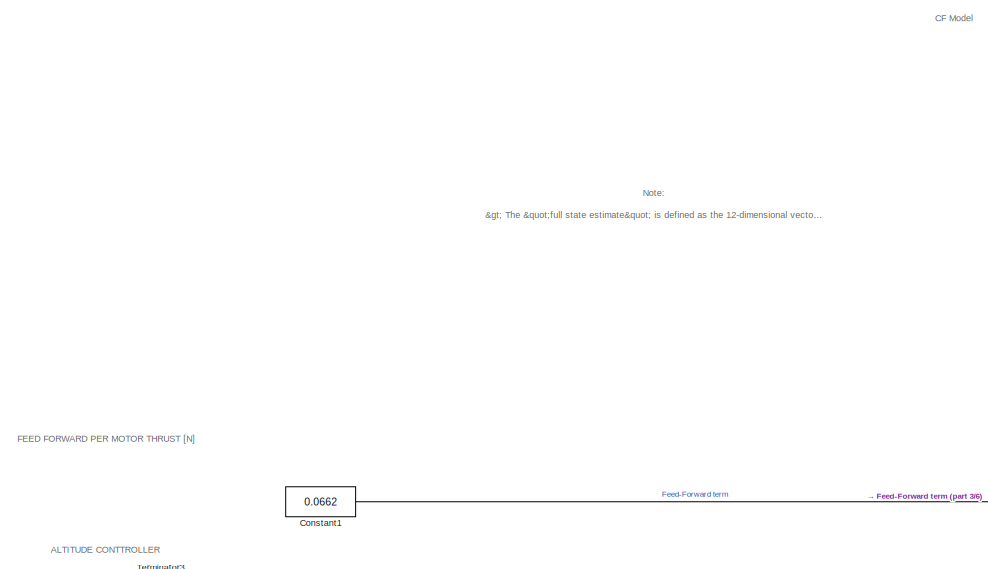
[diagram: root canvas - part 1/6, top center region]
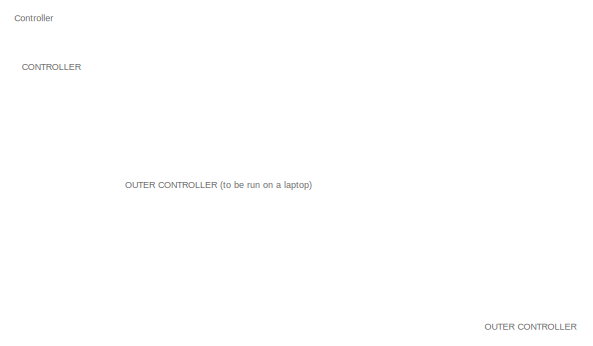
[diagram: root canvas - part 2/6, top left region]
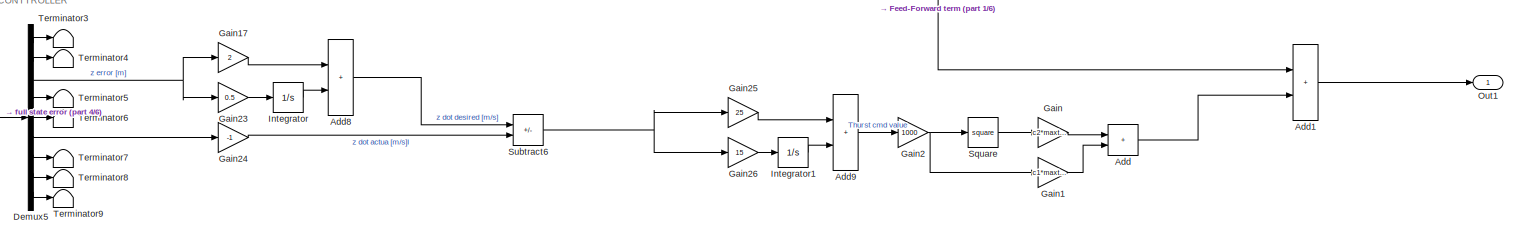
[diagram: root canvas - part 3/6, central region]
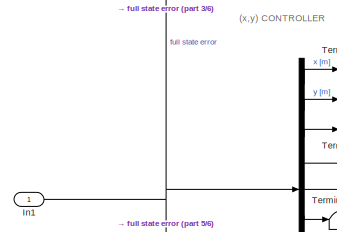
[diagram: root canvas - part 4/6, middle left region]
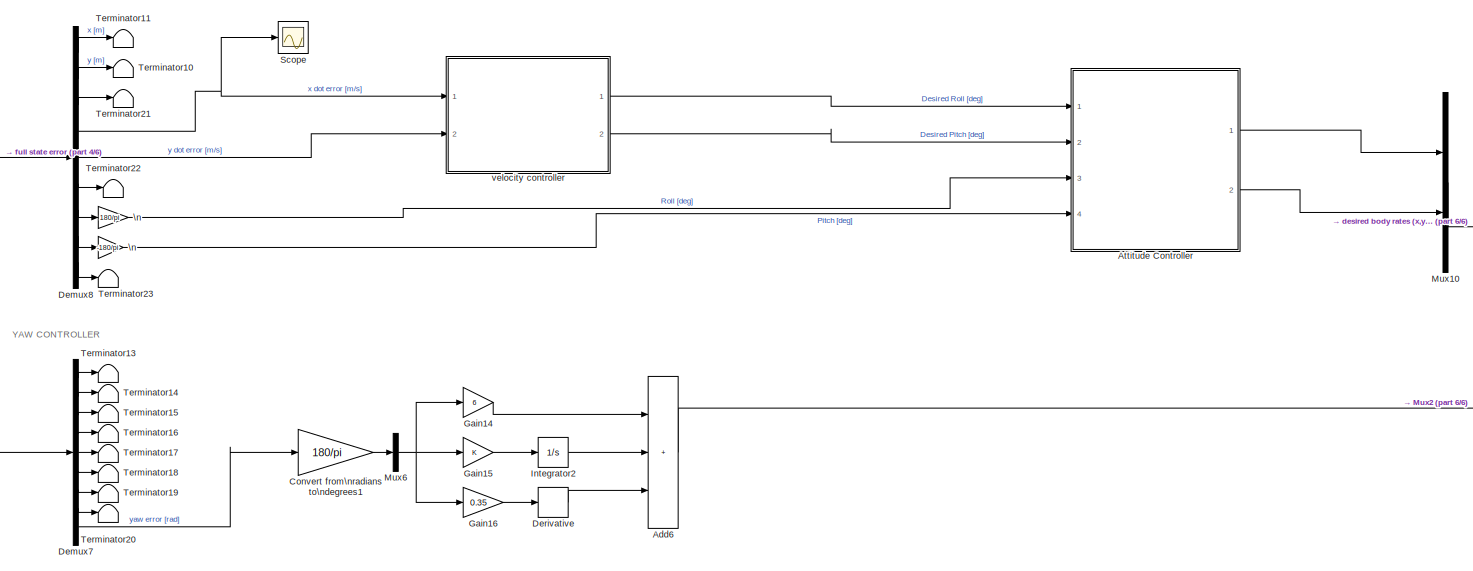
[diagram: root canvas - part 5/6, bottom center region]
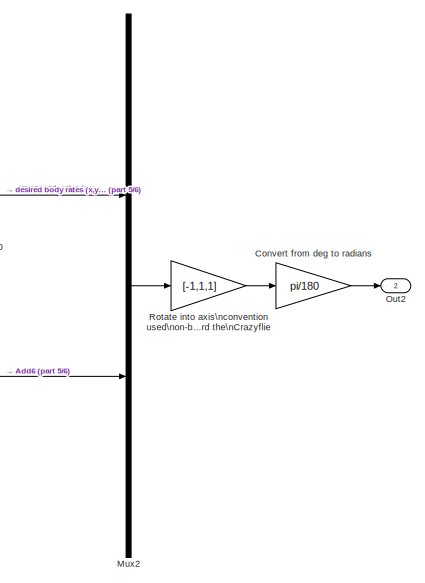
[diagram: root canvas - part 6/6, bottom right region]
MODEL crazyflie_controller_ak
KIND model
BLOCK [Gain]  \n
  Gain = 180/pi
  SID = 3809
BLOCK [Gain]  \n  
  Gain = -180/pi
  SID = 3810
BLOCK [Sum] Add
  IconShape = rectangular
  Ports = [2, 1]
  SID = 3902
BLOCK [Sum] Add1
  IconShape = rectangular
  Ports = [2, 1]
  SID = 3754
BLOCK [Sum] Add6
  IconShape = rectangular
  Inputs = +++
  Ports = [3, 1]
  SID = 3760
BLOCK [Sum] Add8
  IconShape = rectangular
  Ports = [2, 1]
  SID = 3742
BLOCK [Sum] Add9
  IconShape = rectangular
  Ports = [2, 1]
  SID = 3743
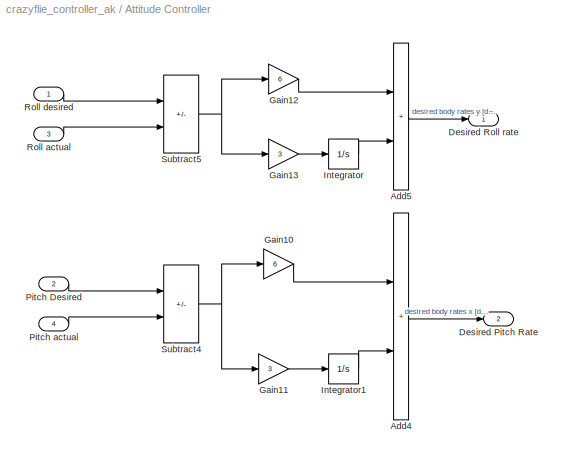
BLOCK [SubSystem] Attitude Controller
  Ports = [4, 2]
  RequestExecContextInheritance = off
  SID = 3829
BLOCK [Sum] Attitude Controller/Add4
  IconShape = rectangular
  Ports = [2, 1]
  SID = 3775
BLOCK [Sum] Attitude Controller/Add5
  IconShape = rectangular
  Ports = [2, 1]
  SID = 3776
BLOCK [Outport] Attitude Controller/Desired Pitch Rate
  Port = 2
  SID = 3835
  VectorParamsAs1DForOutWhenUnconnected = off
BLOCK [Outport] Attitude Controller/Desired Roll rate
  SID = 3834
  VectorParamsAs1DForOutWhenUnconnected = off
BLOCK [Gain] Attitude Controller/Gain10
  Gain = 6
  SID = 3781
BLOCK [Gain] Attitude Controller/Gain11
  Gain = 3
  SID = 3782
BLOCK [Gain] Attitude Controller/Gain12
  Gain = 6
  SID = 3783
BLOCK [Gain] Attitude Controller/Gain13
  Gain = 3
  SID = 3784
BLOCK [Integrator] Attitude Controller/Integrator
  Ports = [1, 1]
  SID = 3896
BLOCK [Integrator] Attitude Controller/Integrator1
  Ports = [1, 1]
  SID = 3897
BLOCK [Inport] Attitude Controller/Pitch Desired
  Port = 2
  SID = 3831
BLOCK [Inport] Attitude Controller/Pitch actual
  Port = 4
  SID = 3833
BLOCK [Inport] Attitude Controller/Roll actual
  Port = 3
  SID = 3832
BLOCK [Inport] Attitude Controller/Roll desired
  SID = 3830
BLOCK [Sum] Attitude Controller/Subtract4
  IconShape = rectangular
  Inputs = +-
  Ports = [2, 1]
  SID = 3797
BLOCK [Sum] Attitude Controller/Subtract5
  IconShape = rectangular
  Inputs = +-
  Ports = [2, 1]
  SID = 3798
BLOCK [Constant] Constant1
  SID = 3753
  Value = 0.0662
BLOCK [Gain] Convert from deg to radians
  Gain = pi/180
  SID = 3898
BLOCK [Gain] Convert from\nradians to\ndegrees1
  Gain = 180/pi
  SID = 3805
BLOCK [Demux] Demux5
  Outputs = 9
  Ports = [1, 9]
  SID = 3633
BLOCK [Demux] Demux7
  Outputs = 9
  Ports = [1, 9]
  SID = 3635
BLOCK [Demux] Demux8
  Outputs = 9
  Ports = [1, 9]
  SID = 3767
BLOCK [Derivative] Derivative
  SID = 3892
BLOCK [Gain] Gain
  Gain = c2*maxthrust
  SID = 3900
BLOCK [Gain] Gain1
  Gain = c1*maxthrust
  SID = 3901
BLOCK [Gain] Gain14
  Gain = 6
  SID = 3763
BLOCK [Gain] Gain15
  SID = 3764
BLOCK [Gain] Gain16
  Gain = 0.35
  SID = 3765
BLOCK [Gain] Gain17
  Gain = 2
  SID = 3746
BLOCK [Gain] Gain2
  Gain = 1000
  SID = 3904
BLOCK [Gain] Gain23
  Gain = 0.5
  SID = 3747
BLOCK [Gain] Gain24
  Gain = -1
  SID = 3748
BLOCK [Gain] Gain25
  Gain = 25
  SID = 3749
BLOCK [Gain] Gain26
  Gain = 15
  SID = 3750
BLOCK [Inport] In1
  SID = 3884
BLOCK [Integrator] Integrator
  Ports = [1, 1]
  SID = 3889
BLOCK [Integrator] Integrator1
  Ports = [1, 1]
  SID = 3890
BLOCK [Integrator] Integrator2
  Ports = [1, 1]
  SID = 3891
BLOCK [Mux] Mux10
  DisplayOption = bar
  Inputs = 2
  Ports = [2, 1]
  SID = 3813
BLOCK [Mux] Mux2
  DisplayOption = bar
  Inputs = 2
  Ports = [2, 1]
  SID = 3642
BLOCK [Mux] Mux6
  DisplayOption = bar
  Inputs = 1
  Ports = [1, 1]
  SID = 3646
BLOCK [Outport] Out1
  SID = 3885
  VectorParamsAs1DForOutWhenUnconnected = off
BLOCK [Outport] Out2
  Port = 2
  SID = 3886
  VectorParamsAs1DForOutWhenUnconnected = off
BLOCK [Gain] Rotate into axis\nconvention used\non-board the\nCrazyflie
  Gain = [-1,1,1]
  SID = 3650
BLOCK [Scope] Scope
  Floating = off
  NumInputPorts = 1
  Ports = [1]
  SID = 3737
  ScopeSpecificationString = Simulink.scopes.TimeScopeBlockCfg('CurrentConfiguration', extmgr.ConfigurationSet(extmgr.Configuration('Core','General UI',true),extmgr.Configuration('Core','Source UI',true),extmgr.Configuration('Sources','WiredSimulink',true,'DataLoggingVariableName','ScopeData1'),extmgr.Configuration('Visuals','Time Domain',true,'SerializedDisplays',{struct('MinYLimReal','-0.25155','MaxYLimReal','0.25052','YLab...<+1405ch>
BLOCK [Math] Square
  Operator = square
  Ports = [1, 1]
  SID = 3899
  SignedPower = on
BLOCK [Sum] Subtract6
  IconShape = rectangular
  Inputs = +-
  Ports = [2, 1]
  SID = 3751
BLOCK [Terminator] Terminator10
  SID = 3845
BLOCK [Terminator] Terminator11
  SID = 3846
BLOCK [Terminator] Terminator13
  SID = 3716
BLOCK [Terminator] Terminator14
  SID = 3717
BLOCK [Terminator] Terminator15
  SID = 3718
BLOCK [Terminator] Terminator16
  SID = 3719
BLOCK [Terminator] Terminator17
  SID = 3720
BLOCK [Terminator] Terminator18
  SID = 3721
BLOCK [Terminator] Terminator19
  SID = 3722
BLOCK [Terminator] Terminator20
  SID = 3723
BLOCK [Terminator] Terminator21
  SID = 3770
BLOCK [Terminator] Terminator22
  SID = 3771
BLOCK [Terminator] Terminator23
  SID = 3772
BLOCK [Terminator] Terminator3
  SID = 3706
BLOCK [Terminator] Terminator4
  SID = 3707
BLOCK [Terminator] Terminator5
  SID = 3708
BLOCK [Terminator] Terminator6
  SID = 3709
BLOCK [Terminator] Terminator7
  SID = 3710
BLOCK [Terminator] Terminator8
  SID = 3711
BLOCK [Terminator] Terminator9
  SID = 3712
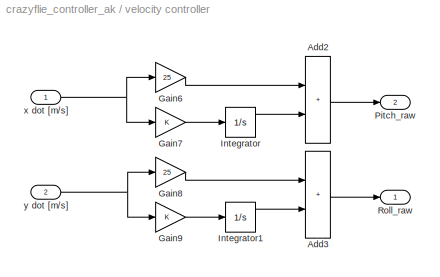
BLOCK [SubSystem] velocity controller
  Ports = [2, 2]
  RequestExecContextInheritance = off
  SID = 3836
BLOCK [Sum] velocity controller/Add2
  IconShape = rectangular
  Ports = [2, 1]
  SID = 3773
BLOCK [Sum] velocity controller/Add3
  IconShape = rectangular
  Ports = [2, 1]
  SID = 3774
BLOCK [Gain] velocity controller/Gain6
  Gain = 25
  SID = 3791
BLOCK [Gain] velocity controller/Gain7
  SID = 3792
BLOCK [Gain] velocity controller/Gain8
  Gain = 25
  SID = 3793
BLOCK [Gain] velocity controller/Gain9
  SID = 3794
BLOCK [Integrator] velocity controller/Integrator
  Ports = [1, 1]
  SID = 3894
BLOCK [Integrator] velocity controller/Integrator1
  Ports = [1, 1]
  SID = 3895
BLOCK [Outport] velocity controller/Pitch_raw
  Port = 2
  SID = 3842
  VectorParamsAs1DForOutWhenUnconnected = off
BLOCK [Outport] velocity controller/Roll_raw
  SID = 3841
  VectorParamsAs1DForOutWhenUnconnected = off
BLOCK [Inport] velocity controller/x dot [m//s]
  SID = 3839
BLOCK [Inport] velocity controller/y dot [m//s]
  Port = 2
  SID = 3840
ANNOTATION (root): (x,y) CONTROLLER
ANNOTATION (root): \n \n CONTROLLER
ANNOTATION (root): \n \n Note: \n > The "full state estimate" is defined as the 12-dimensional vector: [ position ; velocity ; euler angles ; euler rates ] \n > The "body rates estimate" is defined as a 3-dimensional vector: angular rate about the body frame [ x ; y ; z ] axes \n > The "body accelerations estimate" is defined as a 3-dimensional vector: acceleration along the body frame [ x ; y ; z ] axes \n > The "r...<+460ch>
ANNOTATION (root): \n \n CF Model
ANNOTATION (root): \n \n OUTER CONTROLLER
ANNOTATION (root): ALTITUDE CONTTROLLER
ANNOTATION (root): Controller
ANNOTATION (root): FEED FORWARD PER MOTOR THRUST [N]
ANNOTATION (root): OUTER CONTROLLER (to be run on a laptop)
ANNOTATION (root): YAW CONTROLLER
LINE  \n  :1 -> Attitude Controller:4
LINE  \n:1 -> Attitude Controller:3
LINE Add1:1 -> Out1:1
LINE Add6:1 -> Mux2:2
LINE Add8:1 -> Subtract6:1
LINE Add9:1 -> Gain2:1
LINE Add:1 -> Add1:2
LINE Attitude Controller/Add4:1 -> Attitude Controller/Desired Pitch Rate:1
LINE Attitude Controller/Add5:1 -> Attitude Controller/Desired Roll rate:1
LINE Attitude Controller/Gain10:1 -> Attitude Controller/Add4:1
LINE Attitude Controller/Gain11:1 -> Attitude Controller/Integrator1:1
LINE Attitude Controller/Gain12:1 -> Attitude Controller/Add5:1
LINE Attitude Controller/Gain13:1 -> Attitude Controller/Integrator:1
LINE Attitude Controller/Integrator1:1 -> Attitude Controller/Add4:2
LINE Attitude Controller/Integrator:1 -> Attitude Controller/Add5:2
LINE Attitude Controller/Pitch Desired:1 -> Attitude Controller/Subtract4:1
LINE Attitude Controller/Pitch actual:1 -> Attitude Controller/Subtract4:2
LINE Attitude Controller/Roll actual:1 -> Attitude Controller/Subtract5:2
LINE Attitude Controller/Roll desired:1 -> Attitude Controller/Subtract5:1
NET Attitude Controller/Subtract4:1 -> Attitude Controller/Gain10:1, Attitude Controller/Gain11:1
NET Attitude Controller/Subtract5:1 -> Attitude Controller/Gain12:1, Attitude Controller/Gain13:1
LINE Attitude Controller:1 -> Mux10:1
LINE Attitude Controller:2 -> Mux10:2
LINE Constant1:1 -> Add1:1
LINE Convert from deg to radians:1 -> Out2:1
LINE Convert from\nradians to\ndegrees1:1 -> Mux6:1
LINE Demux5:1 -> Terminator3:1
LINE Demux5:2 -> Terminator4:1
NET Demux5:3 -> Gain17:1, Gain23:1
LINE Demux5:4 -> Terminator5:1
LINE Demux5:5 -> Terminator6:1
LINE Demux5:6 -> Gain24:1
LINE Demux5:7 -> Terminator7:1
LINE Demux5:8 -> Terminator8:1
LINE Demux5:9 -> Terminator9:1
LINE Demux7:1 -> Terminator13:1
LINE Demux7:2 -> Terminator14:1
LINE Demux7:3 -> Terminator15:1
LINE Demux7:4 -> Terminator16:1
LINE Demux7:5 -> Terminator17:1
LINE Demux7:6 -> Terminator18:1
LINE Demux7:7 -> Terminator19:1
LINE Demux7:8 -> Terminator20:1
LINE Demux7:9 -> Convert from\nradians to\ndegrees1:1
LINE Demux8:1 -> Terminator11:1
LINE Demux8:2 -> Terminator10:1
LINE Demux8:3 -> Terminator21:1
NET Demux8:4 -> Scope:1, velocity controller:1
LINE Demux8:5 -> velocity controller:2
LINE Demux8:6 -> Terminator22:1
LINE Demux8:7 ->  \n:1
LINE Demux8:8 ->  \n  :1
LINE Demux8:9 -> Terminator23:1
LINE Derivative:1 -> Add6:3
LINE Gain14:1 -> Add6:1
LINE Gain15:1 -> Integrator2:1
LINE Gain16:1 -> Derivative:1
LINE Gain17:1 -> Add8:1
LINE Gain1:1 -> Add:2
LINE Gain23:1 -> Integrator:1
LINE Gain24:1 -> Subtract6:2
LINE Gain25:1 -> Add9:1
LINE Gain26:1 -> Integrator1:1
NET Gain2:1 -> Gain1:1, Square:1
LINE Gain:1 -> Add:1
NET In1:1 -> Demux5:1, Demux7:1, Demux8:1
LINE Integrator1:1 -> Add9:2
LINE Integrator2:1 -> Add6:2
LINE Integrator:1 -> Add8:2
LINE Mux10:1 -> Mux2:1
LINE Mux2:1 -> Rotate into axis\nconvention used\non-board the\nCrazyflie:1
NET Mux6:1 -> Gain14:1, Gain15:1, Gain16:1
LINE Rotate into axis\nconvention used\non-board the\nCrazyflie:1 -> Convert from deg to radians:1
LINE Square:1 -> Gain:1
NET Subtract6:1 -> Gain25:1, Gain26:1
LINE velocity controller/Add2:1 -> velocity controller/Pitch_raw:1
LINE velocity controller/Add3:1 -> velocity controller/Roll_raw:1
LINE velocity controller/Gain6:1 -> velocity controller/Add2:1
LINE velocity controller/Gain7:1 -> velocity controller/Integrator:1
LINE velocity controller/Gain8:1 -> velocity controller/Add3:1
LINE velocity controller/Gain9:1 -> velocity controller/Integrator1:1
LINE velocity controller/Integrator1:1 -> velocity controller/Add3:2
LINE velocity controller/Integrator:1 -> velocity controller/Add2:2
NET velocity controller/x dot [m//s]:1 -> velocity controller/Gain6:1, velocity controller/Gain7:1
NET velocity controller/y dot [m//s]:1 -> velocity controller/Gain8:1, velocity controller/Gain9:1
LINE velocity controller:1 -> Attitude Controller:1
LINE velocity controller:2 -> Attitude Controller:2
note: NET lines group one-source signal fan-out (src -> all destinations, sorted); 1:1 wires keep LINE
